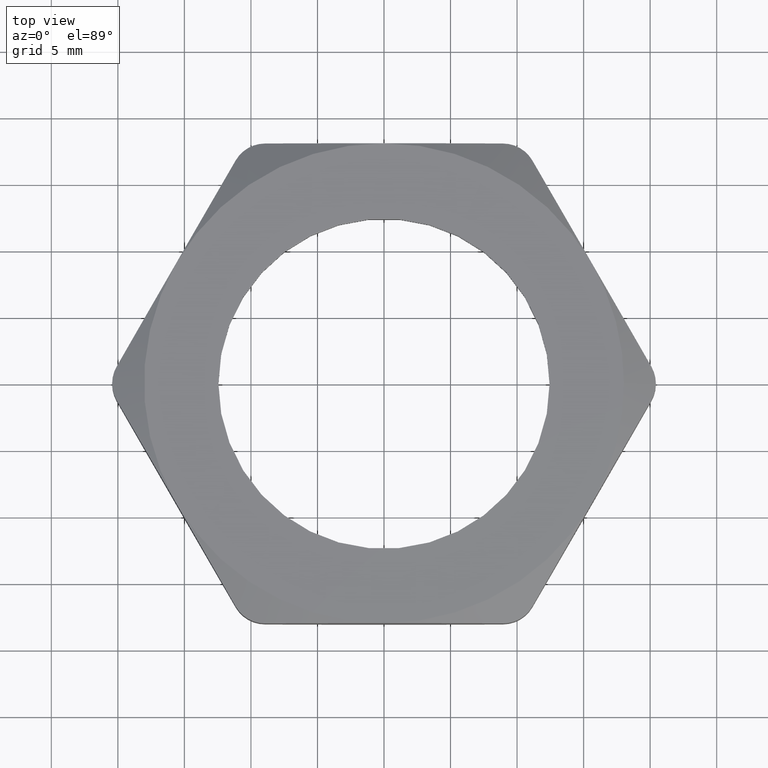
[diagram: clean part render]
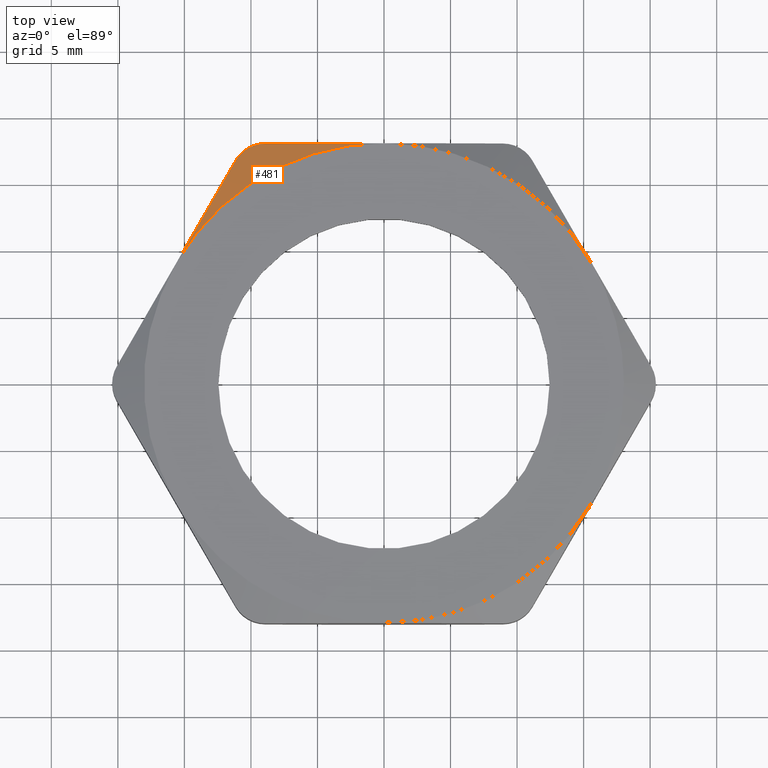
[diagram: same view with one face highlighted and labeled with its STEP entity id]
A machine part, top view. The second image highlights one B-rep face of the part: STEP entity #481.
In plain terms, the highlighted conical surface has half-angle 60 deg.
Its self-contained STEP definition (entity closure, byte-faithful):
#481 = ADVANCED_FACE ( 'NONE', ( #1439 ), #1438, .T. ) ;
#482 = EDGE_LOOP ( 'NONE', ( #483, #484, #530, #532 ) ) ;
#483 = ORIENTED_EDGE ( 'NONE', *, *, #2751, .T. ) ;
#484 = ORIENTED_EDGE ( 'NONE', *, *, #531, .T. ) ;
#487 = EDGE_CURVE ( 'NONE', #2749, #2740, #1437, .T. ) ;
#530 = ORIENTED_EDGE ( 'NONE', *, *, #2498, .T. ) ;
#531 = EDGE_CURVE ( 'NONE', #2506, #2493, #1479, .T. ) ;
#532 = ORIENTED_EDGE ( 'NONE', *, *, #487, .F. ) ;
#1429 = DIRECTION ( 'NONE',  ( 1.000000000000000000, 0.0000000000000000000, 0.0000000000000000000 ) ) ;
#1430 = DIRECTION ( 'NONE',  ( 0.0000000000000000000, 0.0000000000000000000, 1.000000000000000000 ) ) ;
#1431 = CARTESIAN_POINT ( 'NONE',  ( 0.0000000000000000000, 0.0000000000000000000, 0.2800000000000000300 ) ) ;
#1432 = AXIS2_PLACEMENT_3D ( 'NONE', #1431, #1430, #1429 ) ;
#1433 = DIRECTION ( 'NONE',  ( 1.000000000000000000, 0.0000000000000000000, 0.0000000000000000000 ) ) ;
#1434 = DIRECTION ( 'NONE',  ( 0.0000000000000000000, 0.0000000000000000000, -1.000000000000000000 ) ) ;
#1435 = CARTESIAN_POINT ( 'NONE',  ( 0.0000000000000000000, 0.0000000000000000000, 0.2800000000000000300 ) ) ;
#1436 = AXIS2_PLACEMENT_3D ( 'NONE', #1435, #1434, #1433 ) ;
#1437 = CIRCLE ( 'NONE', #1432, 0.7099999999999999600 ) ;
#1438 = CONICAL_SURFACE ( 'NONE', #1436, 0.7099999999999999600, 1.047197551196600100 ) ;
#1439 = FACE_OUTER_BOUND ( 'NONE', #482, .T. ) ;
#1475 = CARTESIAN_POINT ( 'NONE',  ( -0.3693439495999197900, 0.7089052613507529400, 0.2284395668933977800 ) ) ;
#1476 = CARTESIAN_POINT ( 'NONE',  ( -0.3607993000258769600, 0.7099999999999999600, 0.2301301298403008500 ) ) ;
#1477 = CARTESIAN_POINT ( 'NONE',  ( -0.3521836642056743200, 0.7100000000000000800, 0.2323405253673747100 ) ) ;
#1479 = B_SPLINE_CURVE_WITH_KNOTS ( 'NONE', 3,
 ( #1477, #1476, #1475, #1530, #1529, #1528, #1527, #1526, #1525, #1524 ),
 .UNSPECIFIED., .F., .F.,
 ( 4, 2, 2, 2, 4 ),
 ( 3.772774310137954300E-017, 0.0006687025668864410800, 0.001337405133772844400, 0.002006107700659247700, 0.002674810267545651100 ),
 .UNSPECIFIED. ) ;
#1524 = CARTESIAN_POINT ( 'NONE',  ( -0.4387862045841156000, 0.6599999999999999200, 0.2323405253673753200 ) ) ;
#1525 = CARTESIAN_POINT ( 'NONE',  ( -0.4344771285868276900, 0.6674635385609790600, 0.2301294842999556100 ) ) ;
#1526 = CARTESIAN_POINT ( 'NONE',  ( -0.4291302171178008100, 0.6744593283151961700, 0.2284080158464003300 ) ) ;
#1527 = CARTESIAN_POINT ( 'NONE',  ( -0.4168348635717548100, 0.6867854115860057000, 0.2261106538043793900 ) ) ;
#1528 = CARTESIAN_POINT ( 'NONE',  ( -0.4097256664183041000, 0.6922566995037561200, 0.2255132600839761800 ) ) ;
#1529 = CARTESIAN_POINT ( 'NONE',  ( -0.3944952381572198200, 0.7010328366120298600, 0.2255207711079560100 ) ) ;
#1530 = CARTESIAN_POINT ( 'NONE',  ( -0.3862776011719880600, 0.7044157273964966000, 0.2261158501826520400 ) ) ;
#1749 = CARTESIAN_POINT ( 'NONE',  ( -0.6148780366869516200, 0.3550000000000000400, 0.2800000000000000300 ) ) ;
#1750 = CARTESIAN_POINT ( 'NONE',  ( -0.5849588998179132700, 0.4068214651757814900, 0.2800000000000000300 ) ) ;
#1751 = CARTESIAN_POINT ( 'NONE',  ( -0.5553573125328438200, 0.4580929183382063700, 0.2755786460753285000 ) ) ;
#1752 = CARTESIAN_POINT ( 'NONE',  ( -0.4967001195600665400, 0.5596901567964289700, 0.2591340454818027400 ) ) ;
#1753 = CARTESIAN_POINT ( 'NONE',  ( -0.4676419309782443000, 0.6100204157960621400, 0.2471467613510967600 ) ) ;
#1754 = CARTESIAN_POINT ( 'NONE',  ( -0.4387862045841156000, 0.6599999999999999200, 0.2323405253673753200 ) ) ;
#1757 = B_SPLINE_CURVE_WITH_KNOTS ( 'NONE', 3,
 ( #1754, #1753, #1752, #1751, #1750, #1749 ),
 .UNSPECIFIED., .F., .F.,
 ( 4, 2, 4 ),
 ( 0.001508708194318562600, 0.006022059321461433600, 0.01053541044860430300 ),
 .UNSPECIFIED. ) ;
#1758 = CARTESIAN_POINT ( 'NONE',  ( -0.4387862045841156000, 0.6599999999999999200, 0.2323405253673753200 ) ) ;
#1804 = CARTESIAN_POINT ( 'NONE',  ( -0.3521836642056743200, 0.7100000000000000800, 0.2323405253673747100 ) ) ;
#2245 = CARTESIAN_POINT ( 'NONE',  ( -0.6148780366869516200, 0.3550000000000000400, 0.2800000000000000300 ) ) ;
#2267 = CARTESIAN_POINT ( 'NONE',  ( -0.3521836642056743200, 0.7100000000000000800, 0.2323405253673747100 ) ) ;
#2268 = CARTESIAN_POINT ( 'NONE',  ( -0.3232539526168616300, 0.7100000000000000800, 0.2397626247259983000 ) ) ;
#2269 = CARTESIAN_POINT ( 'NONE',  ( -0.2940899783268555200, 0.7099999999999999600, 0.2465070460262259700 ) ) ;
#2270 = CARTESIAN_POINT ( 'NONE',  ( -0.2357364212206002900, 0.7100000000000000800, 0.2582844300639393100 ) ) ;
#2271 = CARTESIAN_POINT ( 'NONE',  ( -0.2064828623824604100, 0.7099999999999999600, 0.2633335036121520200 ) ) ;
#2272 = CARTESIAN_POINT ( 'NONE',  ( -0.1184620020631937700, 0.7099999999999999600, 0.2756355260620083600 ) ) ;
#2273 = CARTESIAN_POINT ( 'NONE',  ( -0.05943055926227201700, 0.7099999999999999600, 0.2799999999999999700 ) ) ;
#2274 = CARTESIAN_POINT ( 'NONE',  ( 1.182924880895401000E-016, 0.7100000000000000800, 0.2800000000000000300 ) ) ;
#2275 = B_SPLINE_CURVE_WITH_KNOTS ( 'NONE', 3,
 ( #2274, #2273, #2272, #2271, #2270, #2269, #2268, #2267 ),
 .UNSPECIFIED., .F., .F.,
 ( 4, 2, 2, 4 ),
 ( 0.06063526839793756400, 0.06515032642537851900, 0.06740785543909899600, 0.06966538445281947300 ),
 .UNSPECIFIED. ) ;
#2285 = CARTESIAN_POINT ( 'NONE',  ( 1.182924880895401000E-016, 0.7100000000000000800, 0.2800000000000000300 ) ) ;
#2493 = VERTEX_POINT ( 'NONE', #1758 ) ;
#2498 = EDGE_CURVE ( 'NONE', #2493, #2740, #1757, .T. ) ;
#2506 = VERTEX_POINT ( 'NONE', #1804 ) ;
#2740 = VERTEX_POINT ( 'NONE', #2245 ) ;
#2749 = VERTEX_POINT ( 'NONE', #2285 ) ;
#2751 = EDGE_CURVE ( 'NONE', #2749, #2506, #2275, .T. ) ;